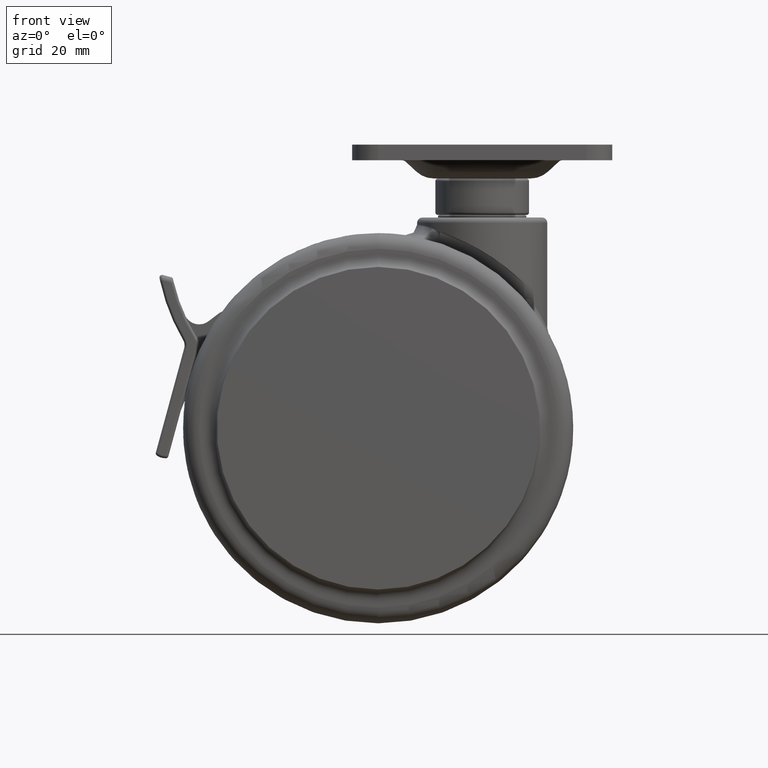
[diagram: clean part render]
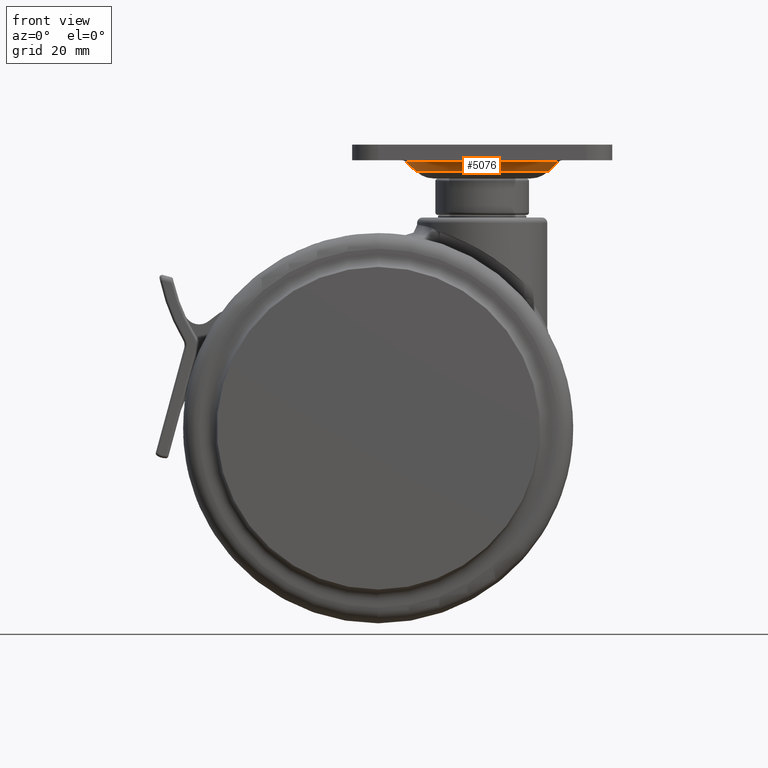
[diagram: same view with one face highlighted and labeled with its STEP entity id]
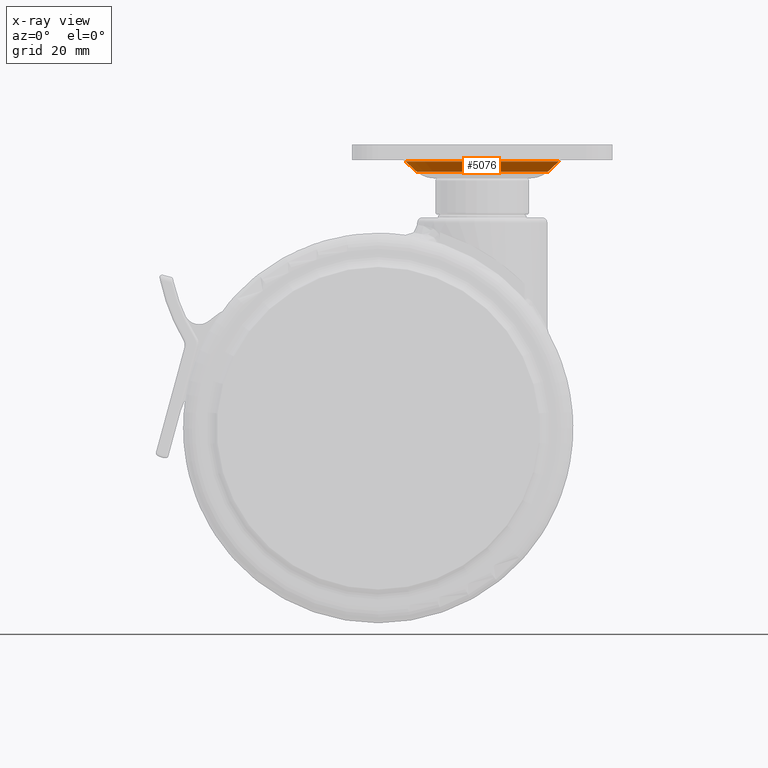
[diagram: x-ray of the same camera — body ghosted, the highlighted face saturated]
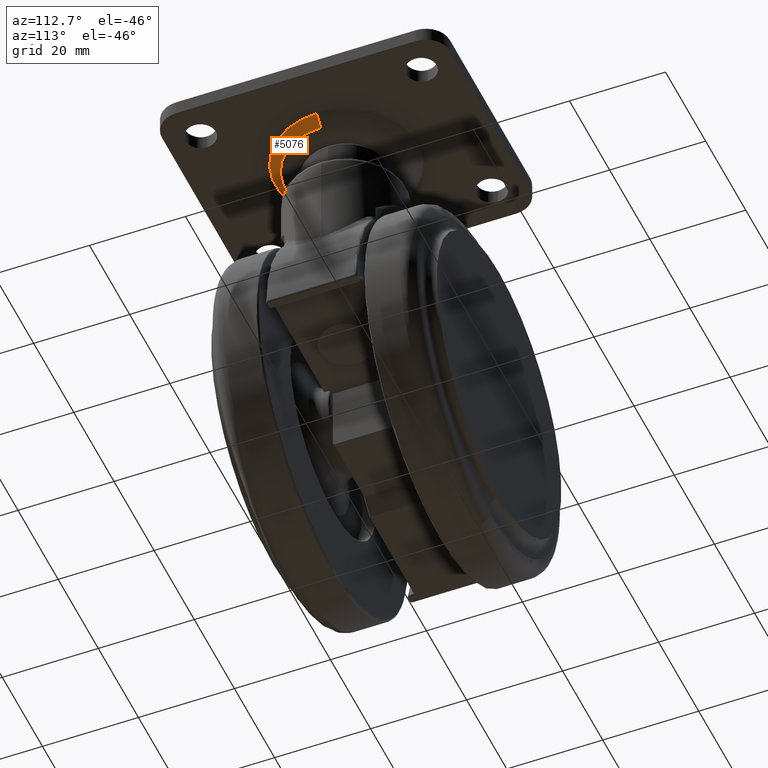
[diagram: same view with one face highlighted and labeled with its STEP entity id]
A machine part, front view. The second image highlights one B-rep face of the part: STEP entity #5076.
The next image is the same camera in x-ray: the body ghosted, the highlighted face saturated — about 0% of this face is hidden behind the body in this view.
A second angle (auxiliary view) of the same face is appended — the face is thin or edge-on in the first view.
In plain terms, the highlighted conical surface has half-angle 47.165 deg.
Its self-contained STEP definition (entity closure, byte-faithful):
#175 = AXIS2_PLACEMENT_3D ( 'NONE', #7326, #3127, #8031 ) ;
#446 = LINE ( 'NONE', #5656, #3769 ) ;
#586 = AXIS2_PLACEMENT_3D ( 'NONE', #3270, #8181, #3988 ) ;
#733 = EDGE_LOOP ( 'NONE', ( #4731, #2895, #6836, #3846 ) ) ;
#853 = CARTESIAN_POINT ( 'NONE',  ( 14.71235813547001000, 0.0000000000000000000, 10.73331217858150000 ) ) ;
#1286 = VERTEX_POINT ( 'NONE', #3637 ) ;
#1315 = CARTESIAN_POINT ( 'NONE',  ( 12.66320932265004000, 0.0000000000000000000, 8.833439107092829100 ) ) ;
#1432 = DIRECTION ( 'NONE',  ( -0.7333121785814538100, 8.980484122755497500E-017, 0.6798920861019945900 ) ) ;
#1651 = DIRECTION ( 'NONE',  ( 0.0000000000000000000, 0.0000000000000000000, 1.000000000000000000 ) ) ;
#2470 = EDGE_CURVE ( 'NONE', #1286, #4580, #446, .T. ) ;
#2746 = CARTESIAN_POINT ( 'NONE',  ( -14.71235813547001000, 1.801744229851287100E-015, 10.73331217858150000 ) ) ;
#2895 = ORIENTED_EDGE ( 'NONE', *, *, #6194, .F. ) ;
#3127 = DIRECTION ( 'NONE',  ( 0.0000000000000000000, 0.0000000000000000000, -1.000000000000000000 ) ) ;
#3270 = CARTESIAN_POINT ( 'NONE',  ( 0.0000000000000000000, 0.0000000000000000000, 8.833439107092829100 ) ) ;
#3637 = CARTESIAN_POINT ( 'NONE',  ( -12.66320932265007600, 0.0000000000000000000, 8.833439107092829100 ) ) ;
#3769 = VECTOR ( 'NONE', #1432, 999.9999999999998900 ) ;
#3846 = ORIENTED_EDGE ( 'NONE', *, *, #4727, .T. ) ;
#3933 = CARTESIAN_POINT ( 'NONE',  ( 0.0000000000000000000, 0.0000000000000000000, 8.833439107092829100 ) ) ;
#3988 = DIRECTION ( 'NONE',  ( -1.000000000000000000, 0.0000000000000000000, 0.0000000000000000000 ) ) ;
#4005 = CARTESIAN_POINT ( 'NONE',  ( 12.66320932265007600, 1.550795876391633700E-015, 8.833439107092829100 ) ) ;
#4580 = VERTEX_POINT ( 'NONE', #2746 ) ;
#4625 = DIRECTION ( 'NONE',  ( 1.000000000000000000, 0.0000000000000000000, 0.0000000000000000000 ) ) ;
#4727 = EDGE_CURVE ( 'NONE', #5384, #4580, #4997, .T. ) ;
#4731 = ORIENTED_EDGE ( 'NONE', *, *, #2470, .F. ) ;
#4985 = VECTOR ( 'NONE', #6226, 999.9999999999998900 ) ;
#4997 = CIRCLE ( 'NONE', #175, 14.71235813547002100 ) ;
#5076 = ADVANCED_FACE ( 'NONE', ( #6520 ), #8168, .T. ) ;
#5192 = EDGE_CURVE ( 'NONE', #5974, #5384, #6828, .T. ) ;
#5384 = VERTEX_POINT ( 'NONE', #853 ) ;
#5635 = AXIS2_PLACEMENT_3D ( 'NONE', #3933, #1651, #4625 ) ;
#5656 = CARTESIAN_POINT ( 'NONE',  ( -12.66320932265004000, 1.550795876391629400E-015, 8.833439107092829100 ) ) ;
#5845 = CIRCLE ( 'NONE', #586, 12.66320932265004000 ) ;
#5974 = VERTEX_POINT ( 'NONE', #4005 ) ;
#6194 = EDGE_CURVE ( 'NONE', #5974, #1286, #5845, .T. ) ;
#6226 = DIRECTION ( 'NONE',  ( 0.7333121785814538100, 0.0000000000000000000, 0.6798920861019945900 ) ) ;
#6520 = FACE_OUTER_BOUND ( 'NONE', #733, .T. ) ;
#6828 = LINE ( 'NONE', #1315, #4985 ) ;
#6836 = ORIENTED_EDGE ( 'NONE', *, *, #5192, .T. ) ;
#7326 = CARTESIAN_POINT ( 'NONE',  ( 0.0000000000000000000, 0.0000000000000000000, 10.73331217858150000 ) ) ;
#8031 = DIRECTION ( 'NONE',  ( -1.000000000000000000, 0.0000000000000000000, 0.0000000000000000000 ) ) ;
#8168 = CONICAL_SURFACE ( 'NONE', #5635, 12.66320932265004000, 0.8231808617366841400 ) ;
#8181 = DIRECTION ( 'NONE',  ( 0.0000000000000000000, 0.0000000000000000000, -1.000000000000000000 ) ) ;